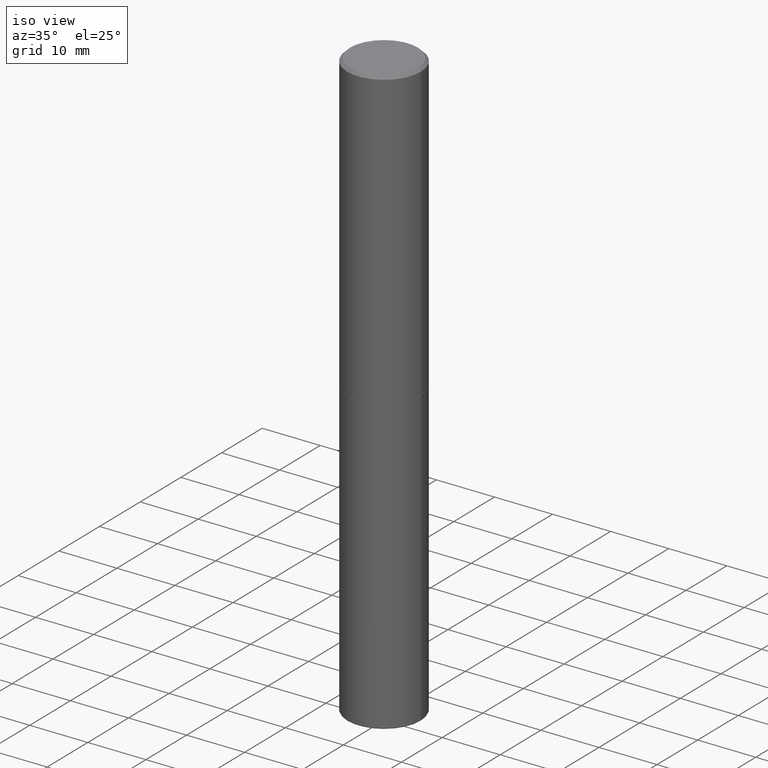
[diagram: clean part render]
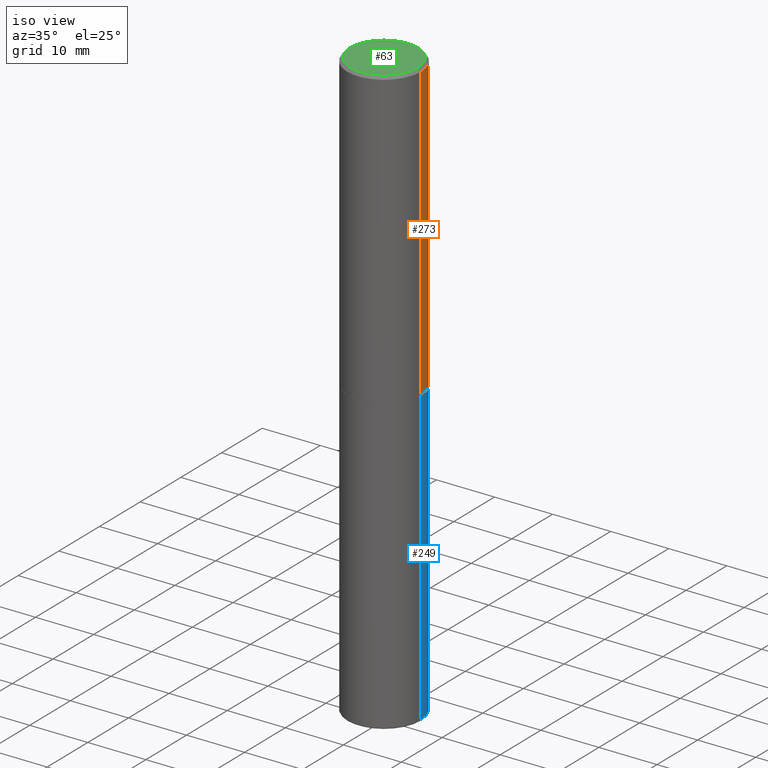
[diagram: same view with three faces highlighted in distinct colors, each labeled with its STEP entity id]
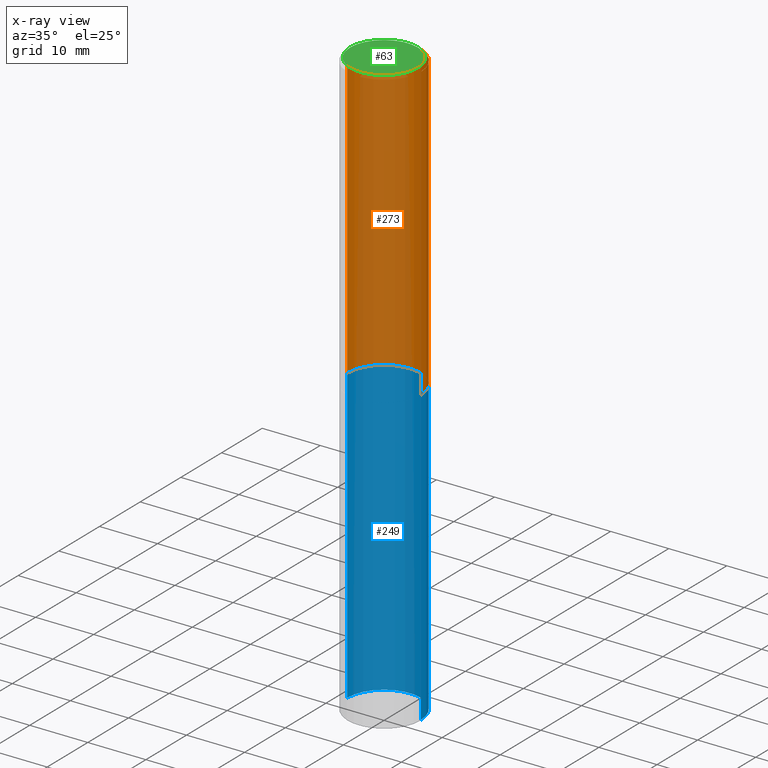
[diagram: x-ray of the same camera — body ghosted, the three highlighted faces saturated]
A machine part, iso view with three faces highlighted in distinct colors.
The next image is the same camera in x-ray (body ghosted, the three faces saturated) — at least one of them is partly hidden behind the body in this view.
Their STEP definitions:

[orange] entity #273 — the highlighted cylindrical surface (partial cylindrical patch) has radius 6.35 mm, axis along (-0, 0, 1).
#28 = CARTESIAN_POINT ( 'NONE',  ( 4.888492143564087591E-29, -6.979471196347447369E-15, -1.998999999999999888 ) ) ;
#30 = DIRECTION ( 'NONE',  ( -2.445468806185136877E-29, 3.491481338843145188E-15, 1.000000000000000000 ) ) ;
#32 = EDGE_CURVE ( 'NONE', #473, #321, #428, .T. ) ;
#37 = CIRCLE ( 'NONE', #68, 0.2499999999999993061 ) ;
#40 = CARTESIAN_POINT ( 'NONE',  ( -0.2500000000000000000, -1.748293572161900530E-15, -1.998999999999999888 ) ) ;
#42 = VECTOR ( 'NONE', #368, 39.37007874015748143 ) ;
#68 = AXIS2_PLACEMENT_3D ( 'NONE', #482, #137, #136 ) ;
#93 = CYLINDRICAL_SURFACE ( 'NONE', #135, 0.2499999999999996669 ) ;
#109 = CARTESIAN_POINT ( 'NONE',  ( 0.2499999999999993061, -1.784954126219741456E-15, -0.02000000000000011838 ) ) ;
#115 = ORIENTED_EDGE ( 'NONE', *, *, #258, .F. ) ;
#135 = AXIS2_PLACEMENT_3D ( 'NONE', #241, #292, #394 ) ;
#136 = DIRECTION ( 'NONE',  ( 1.000000000000000000, -6.982962677686267499E-15, 0.000000000000000000 ) ) ;
#137 = DIRECTION ( 'NONE',  ( -2.445468806185136597E-29, 3.491481338843145583E-15, 1.000000000000000000 ) ) ;
#146 = CARTESIAN_POINT ( 'NONE',  ( 0.2499999999999999722, -8.725211865769014047E-15, -1.998999999999999888 ) ) ;
#159 = ORIENTED_EDGE ( 'NONE', *, *, #32, .T. ) ;
#162 = ORIENTED_EDGE ( 'NONE', *, *, #219, .T. ) ;
#165 = DIRECTION ( 'NONE',  ( -2.445468806185136597E-29, 3.491481338843145583E-15, 1.000000000000000000 ) ) ;
#179 = CARTESIAN_POINT ( 'NONE',  ( -0.2499999999999993061, 1.675911042644698449E-15, -0.02000000000000011838 ) ) ;
#185 = EDGE_CURVE ( 'NONE', #473, #467, #250, .T. ) ;
#205 = DIRECTION ( 'NONE',  ( 1.000000000000000000, -6.982962677686267499E-15, 0.000000000000000000 ) ) ;
#215 = ORIENTED_EDGE ( 'NONE', *, *, #185, .F. ) ;
#216 = AXIS2_PLACEMENT_3D ( 'NONE', #28, #165, #205 ) ;
#219 = EDGE_CURVE ( 'NONE', #321, #243, #290, .T. ) ;
#241 = CARTESIAN_POINT ( 'NONE',  ( 0.000000000000000000, 0.000000000000000000, 0.000000000000000000 ) ) ;
#243 = VERTEX_POINT ( 'NONE', #179 ) ;
#250 = LINE ( 'NONE', #327, #386 ) ;
#258 = EDGE_CURVE ( 'NONE', #467, #243, #37, .T. ) ;
#267 = EDGE_LOOP ( 'NONE', ( #159, #162, #115, #215 ) ) ;
#273 = ADVANCED_FACE ( 'NONE', ( #323 ), #93, .T. ) ;
#290 = LINE ( 'NONE', #334, #42 ) ;
#292 = DIRECTION ( 'NONE',  ( -2.445468806185136597E-29, 3.491481338843145583E-15, 1.000000000000000000 ) ) ;
#321 = VERTEX_POINT ( 'NONE', #40 ) ;
#323 = FACE_OUTER_BOUND ( 'NONE', #267, .T. ) ;
#327 = CARTESIAN_POINT ( 'NONE',  ( 0.2499999999999996669, -1.745740669421564311E-15, 1.219044193948982267E-29 ) ) ;
#334 = CARTESIAN_POINT ( 'NONE',  ( -0.2499999999999996669, 1.776356839400248098E-15, -1.229733772563724764E-29 ) ) ;
#368 = DIRECTION ( 'NONE',  ( -2.445468806185136877E-29, 3.491481338843145188E-15, 1.000000000000000000 ) ) ;
#386 = VECTOR ( 'NONE', #30, 39.37007874015748143 ) ;
#394 = DIRECTION ( 'NONE',  ( 1.000000000000000000, -6.982962677686266711E-15, 4.876176775795935793E-29 ) ) ;
#428 = CIRCLE ( 'NONE', #216, 0.2499999999999999722 ) ;
#467 = VERTEX_POINT ( 'NONE', #109 ) ;
#473 = VERTEX_POINT ( 'NONE', #146 ) ;
#482 = CARTESIAN_POINT ( 'NONE',  ( 4.890937612370302936E-31, -6.982962677686332285E-17, -0.02000000000000011838 ) ) ;

[blue] entity #249 — the highlighted cylindrical surface (partial cylindrical patch) has radius 6.35 mm, axis along (-0, 0, 1).
#9 = EDGE_LOOP ( 'NONE', ( #406, #460, #278, #391 ) ) ;
#15 = VERTEX_POINT ( 'NONE', #248 ) ;
#19 = DIRECTION ( 'NONE',  ( -2.445468806185136597E-29, 3.491481338843145583E-15, 1.000000000000000000 ) ) ;
#20 = EDGE_CURVE ( 'NONE', #15, #245, #261, .T. ) ;
#23 = LINE ( 'NONE', #100, #453 ) ;
#31 = VECTOR ( 'NONE', #407, 39.37007874015748143 ) ;
#46 = CARTESIAN_POINT ( 'NONE',  ( 0.2500000000000000555, -1.567675254085482873E-14, -3.990000380769358479 ) ) ;
#95 = DIRECTION ( 'NONE',  ( 1.000000000000000000, -6.982962677686269077E-15, 0.000000000000000000 ) ) ;
#98 = VERTEX_POINT ( 'NONE', #46 ) ;
#100 = CARTESIAN_POINT ( 'NONE',  ( 0.2500000000000000000, -1.745740669421566678E-15, 1.219044193948983948E-29 ) ) ;
#131 = VERTEX_POINT ( 'NONE', #432 ) ;
#149 = AXIS2_PLACEMENT_3D ( 'NONE', #367, #409, #220 ) ;
#166 = AXIS2_PLACEMENT_3D ( 'NONE', #364, #19, #95 ) ;
#170 = DIRECTION ( 'NONE',  ( -2.445468806185136877E-29, 3.491481338843145188E-15, 1.000000000000000000 ) ) ;
#174 = CYLINDRICAL_SURFACE ( 'NONE', #331, 0.2500000000000000000 ) ;
#199 = EDGE_CURVE ( 'NONE', #98, #131, #206, .T. ) ;
#206 = CIRCLE ( 'NONE', #166, 0.2500000000000000555 ) ;
#220 = DIRECTION ( 'NONE',  ( 1.000000000000000000, -6.982962677686267499E-15, 0.000000000000000000 ) ) ;
#245 = VERTEX_POINT ( 'NONE', #403 ) ;
#248 = CARTESIAN_POINT ( 'NONE',  ( 0.2499999999999999722, -8.728703347107857054E-15, -2.000000000000000000 ) ) ;
#249 = ADVANCED_FACE ( 'NONE', ( #397 ), #174, .T. ) ;
#261 = CIRCLE ( 'NONE', #149, 0.2499999999999999722 ) ;
#278 = ORIENTED_EDGE ( 'NONE', *, *, #20, .F. ) ;
#285 = CARTESIAN_POINT ( 'NONE',  ( 0.000000000000000000, 0.000000000000000000, 0.000000000000000000 ) ) ;
#291 = EDGE_CURVE ( 'NONE', #98, #15, #23, .T. ) ;
#303 = LINE ( 'NONE', #416, #31 ) ;
#325 = DIRECTION ( 'NONE',  ( -2.445468806185136597E-29, 3.491481338843145583E-15, 1.000000000000000000 ) ) ;
#331 = AXIS2_PLACEMENT_3D ( 'NONE', #285, #325, #485 ) ;
#364 = CARTESIAN_POINT ( 'NONE',  ( 9.757421467838283463E-29, -1.393101187143326047E-14, -3.990000380769358479 ) ) ;
#367 = CARTESIAN_POINT ( 'NONE',  ( 4.890937612370273194E-29, -6.982962677686291165E-15, -2.000000000000000000 ) ) ;
#391 = ORIENTED_EDGE ( 'NONE', *, *, #291, .F. ) ;
#397 = FACE_OUTER_BOUND ( 'NONE', #9, .T. ) ;
#403 = CARTESIAN_POINT ( 'NONE',  ( -0.2499999999999999722, -8.680630435159524960E-15, -2.000000000000000000 ) ) ;
#406 = ORIENTED_EDGE ( 'NONE', *, *, #199, .T. ) ;
#407 = DIRECTION ( 'NONE',  ( -2.445468806185136877E-29, 3.491481338843145188E-15, 1.000000000000000000 ) ) ;
#409 = DIRECTION ( 'NONE',  ( -2.445468806185136597E-29, 3.491481338843145583E-15, 1.000000000000000000 ) ) ;
#416 = CARTESIAN_POINT ( 'NONE',  ( -0.2500000000000000000, 1.776356839400250465E-15, -1.229733772563726445E-29 ) ) ;
#417 = EDGE_CURVE ( 'NONE', #131, #245, #303, .T. ) ;
#432 = CARTESIAN_POINT ( 'NONE',  ( -0.2500000000000000555, -8.680630435159524960E-15, -3.990000380769358479 ) ) ;
#453 = VECTOR ( 'NONE', #170, 39.37007874015748143 ) ;
#460 = ORIENTED_EDGE ( 'NONE', *, *, #417, .T. ) ;
#485 = DIRECTION ( 'NONE',  ( 1.000000000000000000, -6.982962677686266711E-15, 4.876176775795935793E-29 ) ) ;

[green] entity #63 — the highlighted planar face has unit normal (0, -0, -1).
#7 = CARTESIAN_POINT ( 'NONE',  ( -1.043851414335219820E-46, 1.490343170380447200E-32, 4.268512490100411279E-18 ) ) ;
#11 = DIRECTION ( 'NONE',  ( -1.000000000000000000, 6.982962677686265922E-15, -4.876176775795935793E-29 ) ) ;
#24 = EDGE_LOOP ( 'NONE', ( #55, #442 ) ) ;
#25 = DIRECTION ( 'NONE',  ( -2.445468806185136597E-29, 3.491481338843145583E-15, 1.000000000000000000 ) ) ;
#55 = ORIENTED_EDGE ( 'NONE', *, *, #148, .T. ) ;
#63 = ADVANCED_FACE ( 'NONE', ( #81 ), #87, .F. ) ;
#76 = EDGE_CURVE ( 'NONE', #435, #201, #408, .T. ) ;
#81 = FACE_OUTER_BOUND ( 'NONE', #24, .T. ) ;
#87 = PLANE ( 'NONE',  #438 ) ;
#118 = CIRCLE ( 'NONE', #353, 0.2299999999999991773 ) ;
#148 = EDGE_CURVE ( 'NONE', #201, #435, #118, .T. ) ;
#164 = CARTESIAN_POINT ( 'NONE',  ( -0.2299999999999991773, 1.640996229256267194E-15, 4.268512490089056766E-18 ) ) ;
#176 = CARTESIAN_POINT ( 'NONE',  ( -1.043851414335219820E-46, 1.490343170380447200E-32, 4.268512490100411279E-18 ) ) ;
#184 = CARTESIAN_POINT ( 'NONE',  ( 0.2299999999999991773, -1.681434332853594081E-15, 4.268512490111905999E-18 ) ) ;
#201 = VERTEX_POINT ( 'NONE', #164 ) ;
#209 = DIRECTION ( 'NONE',  ( 1.000000000000000000, -6.982962677686267499E-15, 4.876225828469326258E-29 ) ) ;
#231 = DIRECTION ( 'NONE',  ( -2.445468806185136597E-29, 3.491481338843145583E-15, 1.000000000000000000 ) ) ;
#310 = DIRECTION ( 'NONE',  ( 2.438088387897960049E-29, -3.491481338843145188E-15, -1.000000000000000000 ) ) ;
#313 = CARTESIAN_POINT ( 'NONE',  ( 1.606081415867835348E-15, 0.2299999999999991773, -8.009064516888704189E-16 ) ) ;
#339 = AXIS2_PLACEMENT_3D ( 'NONE', #7, #231, #424 ) ;
#353 = AXIS2_PLACEMENT_3D ( 'NONE', #176, #25, #209 ) ;
#408 = CIRCLE ( 'NONE', #339, 0.2299999999999991773 ) ;
#424 = DIRECTION ( 'NONE',  ( 1.000000000000000000, -6.982962677686267499E-15, 4.876225828469326258E-29 ) ) ;
#435 = VERTEX_POINT ( 'NONE', #184 ) ;
#438 = AXIS2_PLACEMENT_3D ( 'NONE', #313, #310, #11 ) ;
#442 = ORIENTED_EDGE ( 'NONE', *, *, #76, .T. ) ;